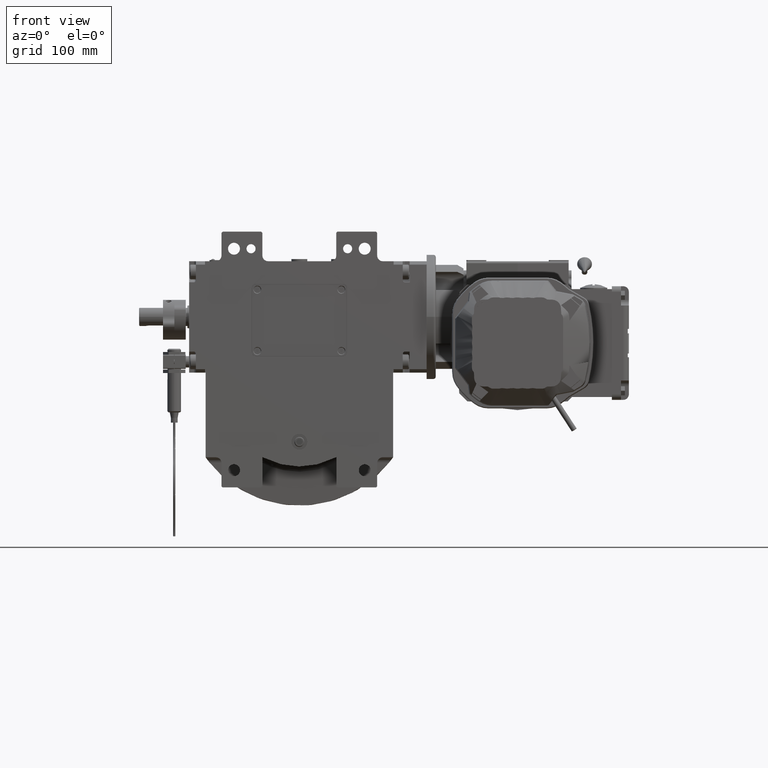
[diagram: clean part render]
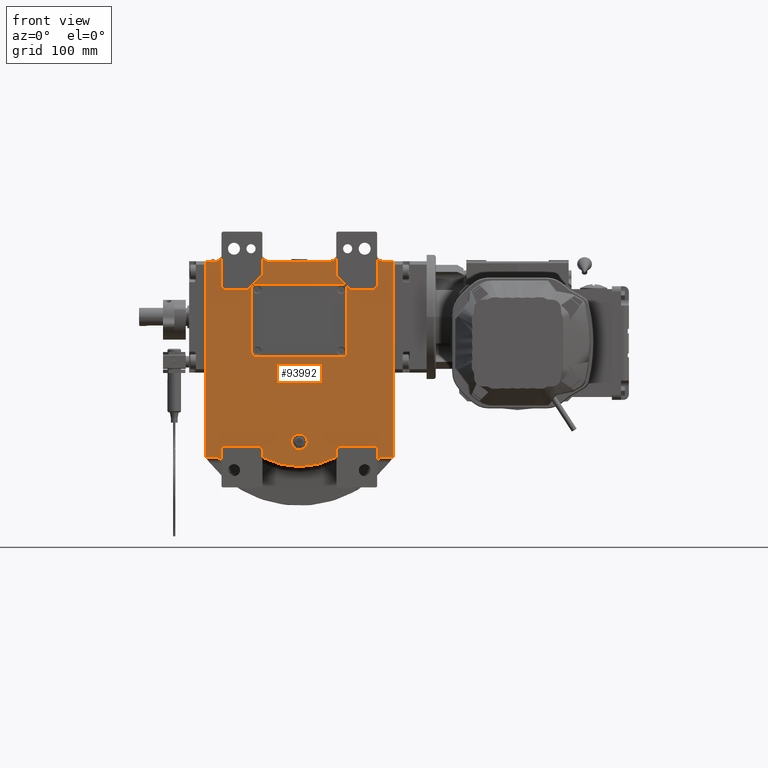
[diagram: same view with one face highlighted and labeled with its STEP entity id]
A machine part, front view. The second image highlights one B-rep face of the part: STEP entity #93992.
In plain terms, the highlighted planar face has unit normal (0, 1, 0).
Its self-contained STEP definition (entity closure, byte-faithful):
#346 = EDGE_CURVE ( 'NONE', #91149, #5003, #90783, .T. ) ;
#618 = VERTEX_POINT ( 'NONE', #14732 ) ;
#723 = CARTESIAN_POINT ( 'NONE',  ( 73.50000000000000000, -40.50000000000000000, -63.50000000000000000 ) ) ;
#1105 = VERTEX_POINT ( 'NONE', #8192 ) ;
#1132 = DIRECTION ( 'NONE',  ( 0.000000000000000000, 1.000000000000000000, 0.000000000000000000 ) ) ;
#1783 = LINE ( 'NONE', #26231, #93983 ) ;
#2097 = CARTESIAN_POINT ( 'NONE',  ( -68.50000000000000000, -40.50000000000000000, 119.0000000000000000 ) ) ;
#2404 = CIRCLE ( 'NONE', #95731, 5.000000000000000888 ) ;
#2912 = CARTESIAN_POINT ( 'NONE',  ( -42.00000000000000000, -40.50000000000000000, 90.00000000000000000 ) ) ;
#2948 = ORIENTED_EDGE ( 'NONE', *, *, #59512, .F. ) ;
#2987 = ORIENTED_EDGE ( 'NONE', *, *, #101188, .F. ) ;
#4972 = CARTESIAN_POINT ( 'NONE',  ( 42.00000000000000000, -40.50000000000000000, 90.00000000000000000 ) ) ;
#5003 = VERTEX_POINT ( 'NONE', #14981 ) ;
#5093 = DIRECTION ( 'NONE',  ( -0.4628475282206209185, 0.000000000000000000, 0.8864379084967325406 ) ) ;
#5520 = AXIS2_PLACEMENT_3D ( 'NONE', #24550, #1132, #57969 ) ;
#6030 = LINE ( 'NONE', #31492, #71637 ) ;
#6302 = CIRCLE ( 'NONE', #46935, 67.00000000000004263 ) ;
#6468 = EDGE_CURVE ( 'NONE', #34314, #38842, #14617, .T. ) ;
#6656 = LINE ( 'NONE', #93819, #96114 ) ;
#7006 = PLANE ( 'NONE',  #25293 ) ;
#7363 = CARTESIAN_POINT ( 'NONE',  ( -4.440892098500625176E-16, -40.50000000000000000, -45.00000000000000000 ) ) ;
#7854 = VERTEX_POINT ( 'NONE', #56520 ) ;
#7886 = VECTOR ( 'NONE', #38449, 1000.000000000000000 ) ;
#8192 = CARTESIAN_POINT ( 'NONE',  ( 38.00000000000000000, -40.50000000000000000, 94.00000000000000000 ) ) ;
#8322 = DIRECTION ( 'NONE',  ( -0.4628475282206227504, 0.000000000000000000, -0.8864379084967315414 ) ) ;
#8622 = LINE ( 'NONE', #50535, #97260 ) ;
#8625 = DIRECTION ( 'NONE',  ( 0.7071067811865474617, 0.000000000000000000, -0.7071067811865474617 ) ) ;
#8729 = DIRECTION ( 'NONE',  ( -1.000000000000000000, 0.000000000000000000, 0.000000000000000000 ) ) ;
#9358 = CARTESIAN_POINT ( 'NONE',  ( 67.50000000000000000, -40.50000000000000000, -49.00000000000000000 ) ) ;
#9524 = CARTESIAN_POINT ( 'NONE',  ( -27.49999999999934630, -40.50000000000000000, 114.0000000000000000 ) ) ;
#9699 = CARTESIAN_POINT ( 'NONE',  ( -38.00000000000000000, -40.50000000000000000, 34.00000000000000000 ) ) ;
#10171 = CARTESIAN_POINT ( 'NONE',  ( 42.00000000000000000, -40.50000000000000000, 34.00000000000000000 ) ) ;
#10844 = DIRECTION ( 'NONE',  ( 0.000000000000000000, 0.000000000000000000, -1.000000000000000000 ) ) ;
#11355 = ORIENTED_EDGE ( 'NONE', *, *, #74103, .F. ) ;
#11360 = LINE ( 'NONE', #11884, #93080 ) ;
#11392 = VERTEX_POINT ( 'NONE', #52538 ) ;
#11481 = ORIENTED_EDGE ( 'NONE', *, *, #82936, .F. ) ;
#11884 = CARTESIAN_POINT ( 'NONE',  ( 38.00000000000000000, -40.50000000000000000, 94.00000000000000000 ) ) ;
#12053 = EDGE_CURVE ( 'NONE', #11392, #59565, #49654, .T. ) ;
#12137 = ORIENTED_EDGE ( 'NONE', *, *, #66024, .F. ) ;
#12842 = VERTEX_POINT ( 'NONE', #23700 ) ;
#12865 = AXIS2_PLACEMENT_3D ( 'NONE', #58894, #34463, #91338 ) ;
#12889 = LINE ( 'NONE', #85691, #35448 ) ;
#13179 = CARTESIAN_POINT ( 'NONE',  ( -68.50000000000000000, -40.50000000000000000, 92.00000000000000000 ) ) ;
#13275 = EDGE_CURVE ( 'NONE', #27685, #66578, #15073, .T. ) ;
#13565 = CARTESIAN_POINT ( 'NONE',  ( -35.50000000000000000, -40.50000000000000000, -49.00000000000000000 ) ) ;
#14313 = CARTESIAN_POINT ( 'NONE',  ( 38.00000000000000000, -40.50000000000000000, 34.00000000000000000 ) ) ;
#14481 = ORIENTED_EDGE ( 'NONE', *, *, #13275, .F. ) ;
#14617 = LINE ( 'NONE', #13565, #40079 ) ;
#14732 = CARTESIAN_POINT ( 'NONE',  ( -38.00000000000000000, -40.50000000000000000, 94.00000000000000000 ) ) ;
#14981 = CARTESIAN_POINT ( 'NONE',  ( 82.50000000000000000, -40.50000000000000000, -58.50000000000000000 ) ) ;
#15073 = LINE ( 'NONE', #70850, #88399 ) ;
#15084 = DIRECTION ( 'NONE',  ( 0.000000000000000000, 1.000000000000000000, 0.000000000000000000 ) ) ;
#15178 = CARTESIAN_POINT ( 'NONE',  ( 45.49999999999939604, -40.50000000000000000, 89.00000000000000000 ) ) ;
#15271 = EDGE_CURVE ( 'NONE', #37704, #69978, #86880, .T. ) ;
#15443 = CARTESIAN_POINT ( 'NONE',  ( -32.50000000000000000, -40.50000000000000000, -58.56853585160510534 ) ) ;
#15635 = AXIS2_PLACEMENT_3D ( 'NONE', #9699, #98941, #75014 ) ;
#15708 = DIRECTION ( 'NONE',  ( 1.000000000000000000, 0.000000000000000000, 0.000000000000000000 ) ) ;
#15762 = CIRCLE ( 'NONE', #73433, 7.000000000000000000 ) ;
#15854 = VERTEX_POINT ( 'NONE', #56394 ) ;
#16130 = CARTESIAN_POINT ( 'NONE',  ( -31.01078439078175109, -40.50000000000000000, -59.06781045751629478 ) ) ;
#16460 = AXIS2_PLACEMENT_3D ( 'NONE', #67127, #76688, #10844 ) ;
#16558 = CARTESIAN_POINT ( 'NONE',  ( 0.000000000000000000, -40.50000000000000000, 0.000000000000000000 ) ) ;
#16599 = DIRECTION ( 'NONE',  ( 0.000000000000000000, -1.000000000000000000, 0.000000000000000000 ) ) ;
#16888 = VERTEX_POINT ( 'NONE', #79453 ) ;
#17082 = CARTESIAN_POINT ( 'NONE',  ( -82.50000000000000000, -40.50000000000000000, 114.0000000000000000 ) ) ;
#17472 = DIRECTION ( 'NONE',  ( -1.000000000000000000, 0.000000000000000000, 0.000000000000000000 ) ) ;
#17951 = VERTEX_POINT ( 'NONE', #74194 ) ;
#18252 = ORIENTED_EDGE ( 'NONE', *, *, #100323, .T. ) ;
#19191 = VECTOR ( 'NONE', #62169, 1000.000000000000114 ) ;
#19694 = AXIS2_PLACEMENT_3D ( 'NONE', #51007, #99384, #74404 ) ;
#20125 = DIRECTION ( 'NONE',  ( 0.7071067811865474617, 0.000000000000000000, 0.7071067811865474617 ) ) ;
#20642 = VERTEX_POINT ( 'NONE', #9358 ) ;
#20761 = LINE ( 'NONE', #53123, #90210 ) ;
#20930 = ORIENTED_EDGE ( 'NONE', *, *, #72659, .T. ) ;
#22005 = LINE ( 'NONE', #54380, #7886 ) ;
#22045 = DIRECTION ( 'NONE',  ( 0.000000000000000000, 0.000000000000000000, 1.000000000000000000 ) ) ;
#22414 = ORIENTED_EDGE ( 'NONE', *, *, #65642, .T. ) ;
#22773 = VECTOR ( 'NONE', #32921, 1000.000000000000000 ) ;
#22788 = CARTESIAN_POINT ( 'NONE',  ( -65.50000000000000000, -40.50000000000000000, 89.00000000000000000 ) ) ;
#22904 = VECTOR ( 'NONE', #92546, 1000.000000000000000 ) ;
#22927 = CARTESIAN_POINT ( 'NONE',  ( 32.49999999999934630, -40.50000000000000000, 102.0000000000000000 ) ) ;
#23011 = CARTESIAN_POINT ( 'NONE',  ( 32.49999999999934630, -40.50000000000000000, 119.0000000000000000 ) ) ;
#23053 = CARTESIAN_POINT ( 'NONE',  ( 27.49999999999934630, -40.50000000000000000, 119.0000000000000000 ) ) ;
#23305 = LINE ( 'NONE', #22788, #85305 ) ;
#23333 = EDGE_CURVE ( 'NONE', #618, #78048, #30725, .T. ) ;
#23433 = DIRECTION ( 'NONE',  ( 0.000000000000000000, -1.000000000000000000, 0.000000000000000000 ) ) ;
#23700 = CARTESIAN_POINT ( 'NONE',  ( 45.49999999999939604, -40.50000000000000000, 89.00000000000000000 ) ) ;
#24048 = DIRECTION ( 'NONE',  ( 3.469446951953611033E-15, 0.000000000000000000, 1.000000000000000000 ) ) ;
#24528 = FACE_OUTER_BOUND ( 'NONE', #83399, .T. ) ;
#24550 = CARTESIAN_POINT ( 'NONE',  ( -73.50000000000000000, -40.50000000000000000, 119.0000000000000000 ) ) ;
#24825 = ORIENTED_EDGE ( 'NONE', *, *, #86739, .F. ) ;
#24955 = AXIS2_PLACEMENT_3D ( 'NONE', #723, #66049, #8729 ) ;
#25240 = DIRECTION ( 'NONE',  ( -0.7071067811865474617, 0.000000000000000000, -0.7071067811865474617 ) ) ;
#25293 = AXIS2_PLACEMENT_3D ( 'NONE', #16558, #40972, #73364 ) ;
#25858 = VERTEX_POINT ( 'NONE', #39622 ) ;
#25908 = CARTESIAN_POINT ( 'NONE',  ( -32.49999999999934630, -40.50000000000000000, 102.0000000000000000 ) ) ;
#26231 = CARTESIAN_POINT ( 'NONE',  ( -38.00000000000000000, -40.50000000000000000, 30.00000000000000000 ) ) ;
#26642 = VERTEX_POINT ( 'NONE', #61068 ) ;
#27685 = VERTEX_POINT ( 'NONE', #41686 ) ;
#28019 = EDGE_CURVE ( 'NONE', #56228, #70097, #72907, .T. ) ;
#28150 = VERTEX_POINT ( 'NONE', #69016 ) ;
#28450 = CARTESIAN_POINT ( 'NONE',  ( -82.50000000000000000, -40.50000000000000000, -58.50000000000000000 ) ) ;
#28872 = CARTESIAN_POINT ( 'NONE',  ( 65.50000000000000000, -40.50000000000000000, 89.00000000000000000 ) ) ;
#29043 = VERTEX_POINT ( 'NONE', #35301 ) ;
#29135 = DIRECTION ( 'NONE',  ( 0.000000000000000000, 1.000000000000000000, 0.000000000000000000 ) ) ;
#29793 = VERTEX_POINT ( 'NONE', #22927 ) ;
#29968 = DIRECTION ( 'NONE',  ( 1.000000000000000000, 0.000000000000000000, 0.000000000000000000 ) ) ;
#30516 = EDGE_CURVE ( 'NONE', #28150, #104757, #36552, .T. ) ;
#30564 = VECTOR ( 'NONE', #33388, 1000.000000000000000 ) ;
#30725 = CIRCLE ( 'NONE', #95204, 4.000000000000003553 ) ;
#30880 = CIRCLE ( 'NONE', #15635, 3.999999999999996447 ) ;
#30986 = DIRECTION ( 'NONE',  ( 0.000000000000000000, -1.000000000000000000, 0.000000000000000000 ) ) ;
#31021 = VECTOR ( 'NONE', #37883, 1000.000000000000000 ) ;
#31492 = CARTESIAN_POINT ( 'NONE',  ( 73.50000000000000000, -40.50000000000000000, 114.0000000000000000 ) ) ;
#31870 = LINE ( 'NONE', #64265, #22773 ) ;
#31950 = CARTESIAN_POINT ( 'NONE',  ( -45.49999999999939604, -40.50000000000000000, 89.00000000000000000 ) ) ;
#32005 = DIRECTION ( 'NONE',  ( 0.000000000000000000, 0.000000000000000000, -1.000000000000000000 ) ) ;
#32643 = VECTOR ( 'NONE', #32005, 1000.000000000000000 ) ;
#32921 = DIRECTION ( 'NONE',  ( 0.7071067811865480168, 0.000000000000000000, 0.7071067811865470176 ) ) ;
#33071 = DIRECTION ( 'NONE',  ( -1.000000000000000000, 0.000000000000000000, 0.000000000000000000 ) ) ;
#33157 = VERTEX_POINT ( 'NONE', #13179 ) ;
#33280 = ORIENTED_EDGE ( 'NONE', *, *, #58257, .F. ) ;
#33313 = CARTESIAN_POINT ( 'NONE',  ( 32.50000000000000000, -40.50000000000000000, -52.00000000000000000 ) ) ;
#33388 = DIRECTION ( 'NONE',  ( 0.000000000000000000, 0.000000000000000000, 1.000000000000000000 ) ) ;
#33463 = DIRECTION ( 'NONE',  ( 1.000000000000000000, 0.000000000000000000, 3.469446951953617344E-15 ) ) ;
#33787 = ORIENTED_EDGE ( 'NONE', *, *, #45079, .F. ) ;
#34053 = EDGE_CURVE ( 'NONE', #1105, #618, #11360, .T. ) ;
#34071 = CARTESIAN_POINT ( 'NONE',  ( -35.50000000000000000, -40.50000000000000000, -49.00000000000000000 ) ) ;
#34155 = CIRCLE ( 'NONE', #88505, 5.000000000000004441 ) ;
#34314 = VERTEX_POINT ( 'NONE', #34071 ) ;
#34392 = CARTESIAN_POINT ( 'NONE',  ( 67.50000000000000000, -40.50000000000000000, -49.00000000000000000 ) ) ;
#34463 = DIRECTION ( 'NONE',  ( 0.000000000000000000, 1.000000000000000000, 0.000000000000000000 ) ) ;
#34950 = CARTESIAN_POINT ( 'NONE',  ( -35.50000000000000000, -40.50000000000000000, -49.00000000000000000 ) ) ;
#35301 = CARTESIAN_POINT ( 'NONE',  ( -68.50000000000000000, -40.50000000000000000, -63.50000000000000000 ) ) ;
#35404 = DIRECTION ( 'NONE',  ( 0.000000000000000000, 1.000000000000000000, 0.000000000000000000 ) ) ;
#35448 = VECTOR ( 'NONE', #54286, 1000.000000000000114 ) ;
#36016 = VERTEX_POINT ( 'NONE', #96405 ) ;
#36299 = DIRECTION ( 'NONE',  ( -1.000000000000000000, 0.000000000000000000, 0.000000000000000000 ) ) ;
#36535 = EDGE_CURVE ( 'NONE', #75880, #26642, #46112, .T. ) ;
#36552 = CIRCLE ( 'NONE', #19694, 5.000000000000000000 ) ;
#36831 = ORIENTED_EDGE ( 'NONE', *, *, #93142, .F. ) ;
#36964 = VECTOR ( 'NONE', #17472, 1000.000000000000000 ) ;
#37704 = VERTEX_POINT ( 'NONE', #10171 ) ;
#37729 = LINE ( 'NONE', #54188, #19191 ) ;
#37883 = DIRECTION ( 'NONE',  ( 0.000000000000000000, 0.000000000000000000, -1.000000000000000000 ) ) ;
#38423 = CARTESIAN_POINT ( 'NONE',  ( -73.50000000000000000, -40.50000000000000000, 114.0000000000000000 ) ) ;
#38449 = DIRECTION ( 'NONE',  ( -1.000000000000000000, 0.000000000000000000, 0.000000000000000000 ) ) ;
#38842 = VERTEX_POINT ( 'NONE', #96731 ) ;
#39033 = DIRECTION ( 'NONE',  ( 0.7071067811865474617, 0.000000000000000000, -0.7071067811865474617 ) ) ;
#39537 = CARTESIAN_POINT ( 'NONE',  ( 42.00000000000000000, -40.50000000000000000, 34.00000000000000000 ) ) ;
#39622 = CARTESIAN_POINT ( 'NONE',  ( 27.49999999999934630, -40.50000000000000000, 114.0000000000000000 ) ) ;
#39744 = CIRCLE ( 'NONE', #73616, 4.000000000000000000 ) ;
#40079 = VECTOR ( 'NONE', #39033, 1000.000000000000114 ) ;
#40334 = EDGE_CURVE ( 'NONE', #69978, #1105, #92074, .T. ) ;
#40651 = EDGE_CURVE ( 'NONE', #81500, #16888, #15762, .T. ) ;
#40689 = CARTESIAN_POINT ( 'NONE',  ( -73.50000000000000000, -40.50000000000000000, -58.50000000000000000 ) ) ;
#40925 = CARTESIAN_POINT ( 'NONE',  ( 38.00000000000000000, -40.50000000000000000, 90.00000000000000000 ) ) ;
#40972 = DIRECTION ( 'NONE',  ( -0.000000000000000000, 1.000000000000000000, 0.000000000000000000 ) ) ;
#40977 = CARTESIAN_POINT ( 'NONE',  ( 32.50000000000000000, -40.50000000000000000, -58.56853585160510534 ) ) ;
#41362 = DIRECTION ( 'NONE',  ( -1.647635329298784785E-16, 0.000000000000000000, -1.000000000000000000 ) ) ;
#41686 = CARTESIAN_POINT ( 'NONE',  ( 68.50000000000000000, -40.50000000000000000, -63.50000000000000000 ) ) ;
#41725 = ORIENTED_EDGE ( 'NONE', *, *, #48480, .T. ) ;
#42929 = LINE ( 'NONE', #34950, #36964 ) ;
#43008 = ORIENTED_EDGE ( 'NONE', *, *, #88728, .F. ) ;
#43540 = LINE ( 'NONE', #2097, #32643 ) ;
#43569 = ORIENTED_EDGE ( 'NONE', *, *, #73660, .F. ) ;
#43689 = ORIENTED_EDGE ( 'NONE', *, *, #49119, .T. ) ;
#45079 = EDGE_CURVE ( 'NONE', #11392, #104961, #49853, .T. ) ;
#46074 = ORIENTED_EDGE ( 'NONE', *, *, #346, .F. ) ;
#46112 = LINE ( 'NONE', #85969, #54335 ) ;
#46935 = AXIS2_PLACEMENT_3D ( 'NONE', #67225, #99658, #8322 ) ;
#47460 = DIRECTION ( 'NONE',  ( 0.000000000000000000, 0.000000000000000000, 1.000000000000000000 ) ) ;
#48480 = EDGE_CURVE ( 'NONE', #87971, #96986, #69340, .T. ) ;
#48758 = DIRECTION ( 'NONE',  ( 1.000000000000000000, 0.000000000000000000, 0.000000000000000000 ) ) ;
#48859 = ORIENTED_EDGE ( 'NONE', *, *, #23333, .F. ) ;
#49119 = EDGE_CURVE ( 'NONE', #76762, #70097, #73372, .T. ) ;
#49551 = EDGE_CURVE ( 'NONE', #91727, #7854, #37729, .T. ) ;
#49654 = LINE ( 'NONE', #92054, #71549 ) ;
#49853 = LINE ( 'NONE', #95228, #30564 ) ;
#50187 = CARTESIAN_POINT ( 'NONE',  ( -68.50000000000000000, -40.50000000000000000, 119.0000000000000000 ) ) ;
#50331 = ORIENTED_EDGE ( 'NONE', *, *, #100788, .T. ) ;
#50492 = CARTESIAN_POINT ( 'NONE',  ( 82.50000000000000000, -40.50000000000000000, 114.0000000000000000 ) ) ;
#50535 = CARTESIAN_POINT ( 'NONE',  ( -32.49999999999934630, -40.50000000000000000, 102.0000000000000000 ) ) ;
#51007 = CARTESIAN_POINT ( 'NONE',  ( -33.32502203188484913, -40.50000000000000000, -63.50000000000000000 ) ) ;
#51079 = ORIENTED_EDGE ( 'NONE', *, *, #28019, .F. ) ;
#51171 = ORIENTED_EDGE ( 'NONE', *, *, #101301, .F. ) ;
#51447 = EDGE_CURVE ( 'NONE', #83344, #25858, #76571, .T. ) ;
#51544 = VECTOR ( 'NONE', #65468, 1000.000000000000000 ) ;
#52538 = CARTESIAN_POINT ( 'NONE',  ( 68.50000000000000000, -40.50000000000000000, 92.00000000000000000 ) ) ;
#52718 = EDGE_CURVE ( 'NONE', #28150, #38842, #63770, .T. ) ;
#53027 = ORIENTED_EDGE ( 'NONE', *, *, #6468, .T. ) ;
#53123 = CARTESIAN_POINT ( 'NONE',  ( 32.50000000000000000, -40.50000000000000000, -52.00000000000000000 ) ) ;
#53192 = ORIENTED_EDGE ( 'NONE', *, *, #36535, .T. ) ;
#53558 = DIRECTION ( 'NONE',  ( 0.000000000000000000, 0.000000000000000000, -1.000000000000000000 ) ) ;
#53561 = DIRECTION ( 'NONE',  ( 0.000000000000000000, 0.000000000000000000, 1.000000000000000000 ) ) ;
#53641 = DIRECTION ( 'NONE',  ( 0.000000000000000000, 0.000000000000000000, -1.000000000000000000 ) ) ;
#54077 = EDGE_CURVE ( 'NONE', #96986, #29043, #56907, .T. ) ;
#54188 = CARTESIAN_POINT ( 'NONE',  ( -68.50000000000000000, -40.50000000000000000, -50.00000000000000000 ) ) ;
#54286 = DIRECTION ( 'NONE',  ( 0.7071067811865474617, 0.000000000000000000, -0.7071067811865474617 ) ) ;
#54335 = VECTOR ( 'NONE', #20125, 1000.000000000000114 ) ;
#54368 = LINE ( 'NONE', #79370, #93196 ) ;
#54380 = CARTESIAN_POINT ( 'NONE',  ( 82.50000000000000000, -40.50000000000000000, -58.50000000000000000 ) ) ;
#54601 = CIRCLE ( 'NONE', #100436, 7.000000000000000000 ) ;
#55163 = DIRECTION ( 'NONE',  ( -0.7071067811865474617, 0.000000000000000000, 0.7071067811865474617 ) ) ;
#55169 = CARTESIAN_POINT ( 'NONE',  ( -42.00000000000000000, -40.50000000000000000, 34.00000000000000000 ) ) ;
#55715 = DIRECTION ( 'NONE',  ( 0.000000000000000000, -1.000000000000000000, 0.000000000000000000 ) ) ;
#56228 = VERTEX_POINT ( 'NONE', #17082 ) ;
#56394 = CARTESIAN_POINT ( 'NONE',  ( -38.00000000000000000, -40.50000000000000000, 30.00000000000000000 ) ) ;
#56427 = CARTESIAN_POINT ( 'NONE',  ( -38.00000000000000000, -40.50000000000000000, 90.00000000000000000 ) ) ;
#56434 = EDGE_CURVE ( 'NONE', #75880, #78953, #20761, .T. ) ;
#56520 = CARTESIAN_POINT ( 'NONE',  ( -67.50000000000000000, -40.50000000000000000, -49.00000000000000000 ) ) ;
#56907 = CIRCLE ( 'NONE', #12865, 4.999999999999997335 ) ;
#56976 = CARTESIAN_POINT ( 'NONE',  ( -82.50000000000000000, -40.50000000000000000, 114.0000000000000000 ) ) ;
#57966 = CIRCLE ( 'NONE', #64808, 5.000000000000150990 ) ;
#57969 = DIRECTION ( 'NONE',  ( 1.000000000000000000, 0.000000000000000000, 0.000000000000000000 ) ) ;
#58257 = EDGE_CURVE ( 'NONE', #88759, #69463, #8622, .T. ) ;
#58379 = VECTOR ( 'NONE', #15708, 1000.000000000000000 ) ;
#58411 = ORIENTED_EDGE ( 'NONE', *, *, #40334, .F. ) ;
#58894 = CARTESIAN_POINT ( 'NONE',  ( -73.50000000000000000, -40.50000000000000000, -63.50000000000000000 ) ) ;
#59512 = EDGE_CURVE ( 'NONE', #69770, #29793, #63363, .T. ) ;
#59565 = VERTEX_POINT ( 'NONE', #28872 ) ;
#60813 = DIRECTION ( 'NONE',  ( 0.000000000000000000, 0.000000000000000000, -1.000000000000000000 ) ) ;
#61068 = CARTESIAN_POINT ( 'NONE',  ( 35.50000000000000000, -40.50000000000000000, -49.00000000000000000 ) ) ;
#62169 = DIRECTION ( 'NONE',  ( 0.7071067811865474617, 0.000000000000000000, 0.7071067811865474617 ) ) ;
#62217 = CARTESIAN_POINT ( 'NONE',  ( -82.50000000000000000, -40.50000000000000000, -58.50000000000000000 ) ) ;
#62258 = ORIENTED_EDGE ( 'NONE', *, *, #56434, .F. ) ;
#63098 = VECTOR ( 'NONE', #60813, 1000.000000000000000 ) ;
#63137 = ORIENTED_EDGE ( 'NONE', *, *, #49551, .T. ) ;
#63363 = LINE ( 'NONE', #23011, #31021 ) ;
#63770 = LINE ( 'NONE', #15443, #83865 ) ;
#63885 = DIRECTION ( 'NONE',  ( 1.000000000000000000, 0.000000000000000000, 0.000000000000000000 ) ) ;
#64238 = EDGE_CURVE ( 'NONE', #104757, #94118, #6302, .T. ) ;
#64265 = CARTESIAN_POINT ( 'NONE',  ( -45.49999999999939604, -40.50000000000000000, 89.00000000000000000 ) ) ;
#64608 = EDGE_CURVE ( 'NONE', #27685, #82191, #70732, .T. ) ;
#64706 = DIRECTION ( 'NONE',  ( 0.000000000000000000, -1.000000000000000000, 0.000000000000000000 ) ) ;
#64808 = AXIS2_PLACEMENT_3D ( 'NONE', #77895, #35404, #5093 ) ;
#65106 = CARTESIAN_POINT ( 'NONE',  ( -68.50000000000000000, -40.50000000000000000, -50.00000000000000000 ) ) ;
#65450 = EDGE_CURVE ( 'NONE', #36016, #79033, #6656, .T. ) ;
#65468 = DIRECTION ( 'NONE',  ( 1.000000000000000000, 0.000000000000000000, 0.000000000000000000 ) ) ;
#65642 = EDGE_CURVE ( 'NONE', #83344, #69463, #82570, .T. ) ;
#66024 = EDGE_CURVE ( 'NONE', #29793, #12842, #81399, .T. ) ;
#66049 = DIRECTION ( 'NONE',  ( 0.000000000000000000, 1.000000000000000000, 0.000000000000000000 ) ) ;
#66578 = VERTEX_POINT ( 'NONE', #83371 ) ;
#66793 = DIRECTION ( 'NONE',  ( -1.000000000000000000, 0.000000000000000000, 0.000000000000000000 ) ) ;
#67120 = DIRECTION ( 'NONE',  ( 1.000000000000000000, 0.000000000000000000, 0.000000000000000000 ) ) ;
#67127 = CARTESIAN_POINT ( 'NONE',  ( -27.49999999999934630, -40.50000000000000000, 119.0000000000000000 ) ) ;
#67225 = CARTESIAN_POINT ( 'NONE',  ( -1.421085471520200056E-14, -40.50000000000000000, 0.3235294117646605461 ) ) ;
#68071 = CARTESIAN_POINT ( 'NONE',  ( -27.49999999999934630, -40.50000000000000000, 114.0000000000000000 ) ) ;
#68472 = LINE ( 'NONE', #100897, #70145 ) ;
#69016 = CARTESIAN_POINT ( 'NONE',  ( -32.50000000000000000, -40.50000000000000000, -58.56853585160510534 ) ) ;
#69340 = LINE ( 'NONE', #28450, #71650 ) ;
#69463 = VERTEX_POINT ( 'NONE', #90717 ) ;
#69512 = VECTOR ( 'NONE', #41362, 1000.000000000000000 ) ;
#69770 = VERTEX_POINT ( 'NONE', #72003 ) ;
#69777 = ORIENTED_EDGE ( 'NONE', *, *, #12053, .T. ) ;
#69887 = DIRECTION ( 'NONE',  ( 1.000000000000000000, 0.000000000000000000, 0.000000000000000000 ) ) ;
#69978 = VERTEX_POINT ( 'NONE', #4972 ) ;
#70097 = VERTEX_POINT ( 'NONE', #38423 ) ;
#70145 = VECTOR ( 'NONE', #53561, 1000.000000000000000 ) ;
#70246 = EDGE_CURVE ( 'NONE', #16888, #81500, #54601, .T. ) ;
#70363 = EDGE_CURVE ( 'NONE', #70456, #15854, #30880, .T. ) ;
#70427 = ORIENTED_EDGE ( 'NONE', *, *, #72483, .F. ) ;
#70456 = VERTEX_POINT ( 'NONE', #55169 ) ;
#70732 = CIRCLE ( 'NONE', #24955, 5.000000000000004441 ) ;
#70850 = CARTESIAN_POINT ( 'NONE',  ( 68.50000000000000000, -40.50000000000000000, -63.50000000000000000 ) ) ;
#71549 = VECTOR ( 'NONE', #25240, 1000.000000000000114 ) ;
#71637 = VECTOR ( 'NONE', #63885, 1000.000000000000000 ) ;
#71650 = VECTOR ( 'NONE', #102817, 1000.000000000000000 ) ;
#71868 = CARTESIAN_POINT ( 'NONE',  ( 4.440892098500625176E-16, -40.50000000000000000, -45.00000000000000000 ) ) ;
#71976 = ORIENTED_EDGE ( 'NONE', *, *, #93823, .T. ) ;
#72003 = CARTESIAN_POINT ( 'NONE',  ( 32.49999999999934630, -40.50000000000000000, 119.0000000000000000 ) ) ;
#72347 = CARTESIAN_POINT ( 'NONE',  ( 32.49999999999934630, -40.50000000000000000, 102.0000000000000000 ) ) ;
#72483 = EDGE_CURVE ( 'NONE', #92622, #37704, #39744, .T. ) ;
#72659 = EDGE_CURVE ( 'NONE', #69770, #25858, #2404, .T. ) ;
#72907 = LINE ( 'NONE', #56976, #51544 ) ;
#73364 = DIRECTION ( 'NONE',  ( 1.000000000000000000, 0.000000000000000000, 0.000000000000000000 ) ) ;
#73372 = CIRCLE ( 'NONE', #5520, 5.000000000000004441 ) ;
#73433 = AXIS2_PLACEMENT_3D ( 'NONE', #7363, #64706, #48758 ) ;
#73616 = AXIS2_PLACEMENT_3D ( 'NONE', #14313, #55715, #98569 ) ;
#73660 = EDGE_CURVE ( 'NONE', #15854, #92622, #1783, .T. ) ;
#74103 = EDGE_CURVE ( 'NONE', #79033, #88759, #31870, .T. ) ;
#74194 = CARTESIAN_POINT ( 'NONE',  ( 73.50000000000000000, -40.50000000000000000, 114.0000000000000000 ) ) ;
#74404 = DIRECTION ( 'NONE',  ( 0.1650044063769659508, 0.000000000000000000, 0.9862928296789877924 ) ) ;
#75014 = DIRECTION ( 'NONE',  ( -1.000000000000000000, 0.000000000000000000, 0.000000000000000000 ) ) ;
#75797 = ORIENTED_EDGE ( 'NONE', *, *, #54077, .T. ) ;
#75880 = VERTEX_POINT ( 'NONE', #33313 ) ;
#76571 = LINE ( 'NONE', #68071, #22904 ) ;
#76688 = DIRECTION ( 'NONE',  ( 0.000000000000000000, 1.000000000000000000, 0.000000000000000000 ) ) ;
#76762 = VERTEX_POINT ( 'NONE', #50187 ) ;
#76805 = EDGE_CURVE ( 'NONE', #5003, #82191, #22005, .T. ) ;
#77895 = CARTESIAN_POINT ( 'NONE',  ( 33.32502203188480649, -40.50000000000000000, -63.50000000000000000 ) ) ;
#78048 = VERTEX_POINT ( 'NONE', #2912 ) ;
#78405 = EDGE_LOOP ( 'NONE', ( #92449, #96712 ) ) ;
#78953 = VERTEX_POINT ( 'NONE', #40977 ) ;
#79033 = VERTEX_POINT ( 'NONE', #31950 ) ;
#79188 = ORIENTED_EDGE ( 'NONE', *, *, #70363, .F. ) ;
#79190 = VECTOR ( 'NONE', #8625, 1000.000000000000114 ) ;
#79370 = CARTESIAN_POINT ( 'NONE',  ( -42.00000000000000000, -40.50000000000000000, 90.00000000000000000 ) ) ;
#79453 = CARTESIAN_POINT ( 'NONE',  ( -7.000000000000000000, -40.50000000000000000, -45.00000000000000000 ) ) ;
#80782 = ORIENTED_EDGE ( 'NONE', *, *, #64608, .T. ) ;
#81399 = LINE ( 'NONE', #72347, #79190 ) ;
#81500 = VERTEX_POINT ( 'NONE', #84194 ) ;
#81603 = EDGE_CURVE ( 'NONE', #78048, #70456, #54368, .T. ) ;
#81995 = ORIENTED_EDGE ( 'NONE', *, *, #30516, .T. ) ;
#82191 = VERTEX_POINT ( 'NONE', #103545 ) ;
#82570 = CIRCLE ( 'NONE', #16460, 5.000000000000004441 ) ;
#82936 = EDGE_CURVE ( 'NONE', #91727, #29043, #99087, .T. ) ;
#82970 = DIRECTION ( 'NONE',  ( 0.000000000000000000, 0.000000000000000000, 1.000000000000000000 ) ) ;
#83344 = VERTEX_POINT ( 'NONE', #9524 ) ;
#83371 = CARTESIAN_POINT ( 'NONE',  ( 68.50000000000000000, -40.50000000000000000, -50.00000000000000000 ) ) ;
#83399 = EDGE_LOOP ( 'NONE', ( #80782, #93566, #46074, #2987, #18252, #33787, #69777, #24825, #12137, #2948, #20930, #91994, #22414, #33280, #11355, #95841, #96648, #51171, #43689, #51079, #95423, #41725, #75797, #11481, #63137, #36831, #53027, #85099, #81995, #97882, #50331, #62258, #53192, #43008, #71976, #14481 ) ) ;
#83865 = VECTOR ( 'NONE', #88768, 1000.000000000000000 ) ;
#84102 = VECTOR ( 'NONE', #66793, 1000.000000000000000 ) ;
#84194 = CARTESIAN_POINT ( 'NONE',  ( 7.000000000000000000, -40.50000000000000000, -45.00000000000000000 ) ) ;
#84433 = CARTESIAN_POINT ( 'NONE',  ( 73.50000000000000000, -40.50000000000000000, 119.0000000000000000 ) ) ;
#85099 = ORIENTED_EDGE ( 'NONE', *, *, #52718, .F. ) ;
#85305 = VECTOR ( 'NONE', #55163, 1000.000000000000114 ) ;
#85691 = CARTESIAN_POINT ( 'NONE',  ( 67.50000000000000000, -40.50000000000000000, -49.00000000000000000 ) ) ;
#85832 = ORIENTED_EDGE ( 'NONE', *, *, #34053, .F. ) ;
#85969 = CARTESIAN_POINT ( 'NONE',  ( 32.50000000000000000, -40.50000000000000000, -52.00000000000000000 ) ) ;
#86114 = EDGE_CURVE ( 'NONE', #87971, #56228, #68472, .T. ) ;
#86739 = EDGE_CURVE ( 'NONE', #12842, #59565, #87986, .T. ) ;
#86880 = LINE ( 'NONE', #39537, #97206 ) ;
#86924 = EDGE_LOOP ( 'NONE', ( #43569, #79188, #91902, #48859, #85832, #58411, #101153, #70427 ) ) ;
#87971 = VERTEX_POINT ( 'NONE', #62217 ) ;
#87986 = LINE ( 'NONE', #15178, #58379 ) ;
#88399 = VECTOR ( 'NONE', #47460, 1000.000000000000000 ) ;
#88505 = AXIS2_PLACEMENT_3D ( 'NONE', #84433, #29135, #53558 ) ;
#88728 = EDGE_CURVE ( 'NONE', #20642, #26642, #90749, .T. ) ;
#88759 = VERTEX_POINT ( 'NONE', #25908 ) ;
#88768 = DIRECTION ( 'NONE',  ( 0.000000000000000000, 0.000000000000000000, 1.000000000000000000 ) ) ;
#89351 = FACE_BOUND ( 'NONE', #86924, .T. ) ;
#90210 = VECTOR ( 'NONE', #53641, 1000.000000000000000 ) ;
#90717 = CARTESIAN_POINT ( 'NONE',  ( -32.49999999999934630, -40.50000000000000000, 119.0000000000000000 ) ) ;
#90749 = LINE ( 'NONE', #34392, #84102 ) ;
#90783 = LINE ( 'NONE', #96667, #69512 ) ;
#91010 = CARTESIAN_POINT ( 'NONE',  ( 68.50000000000000000, -40.50000000000000000, 119.0000000000000000 ) ) ;
#91149 = VERTEX_POINT ( 'NONE', #50492 ) ;
#91338 = DIRECTION ( 'NONE',  ( 0.000000000000000000, 0.000000000000000000, 1.000000000000000000 ) ) ;
#91727 = VERTEX_POINT ( 'NONE', #65106 ) ;
#91902 = ORIENTED_EDGE ( 'NONE', *, *, #81603, .F. ) ;
#91994 = ORIENTED_EDGE ( 'NONE', *, *, #51447, .F. ) ;
#92054 = CARTESIAN_POINT ( 'NONE',  ( 68.50000000000000000, -40.50000000000000000, 92.00000000000000000 ) ) ;
#92074 = CIRCLE ( 'NONE', #103962, 3.999999999999996447 ) ;
#92449 = ORIENTED_EDGE ( 'NONE', *, *, #40651, .F. ) ;
#92546 = DIRECTION ( 'NONE',  ( 1.000000000000000000, 0.000000000000000000, 0.000000000000000000 ) ) ;
#92622 = VERTEX_POINT ( 'NONE', #104724 ) ;
#93080 = VECTOR ( 'NONE', #36299, 1000.000000000000000 ) ;
#93142 = EDGE_CURVE ( 'NONE', #34314, #7854, #42929, .T. ) ;
#93196 = VECTOR ( 'NONE', #102744, 1000.000000000000000 ) ;
#93566 = ORIENTED_EDGE ( 'NONE', *, *, #76805, .F. ) ;
#93819 = CARTESIAN_POINT ( 'NONE',  ( -65.50000000000000000, -40.50000000000000000, 89.00000000000000000 ) ) ;
#93823 = EDGE_CURVE ( 'NONE', #20642, #66578, #12889, .T. ) ;
#93983 = VECTOR ( 'NONE', #67120, 1000.000000000000000 ) ;
#93992 = ADVANCED_FACE ( 'NONE', ( #97314, #24528, #89351 ), #7006, .F. ) ;
#94118 = VERTEX_POINT ( 'NONE', #99399 ) ;
#95204 = AXIS2_PLACEMENT_3D ( 'NONE', #56427, #16599, #24048 ) ;
#95228 = CARTESIAN_POINT ( 'NONE',  ( 68.50000000000000000, -40.50000000000000000, 92.00000000000000000 ) ) ;
#95423 = ORIENTED_EDGE ( 'NONE', *, *, #86114, .F. ) ;
#95731 = AXIS2_PLACEMENT_3D ( 'NONE', #23053, #15084, #29968 ) ;
#95841 = ORIENTED_EDGE ( 'NONE', *, *, #65450, .F. ) ;
#96114 = VECTOR ( 'NONE', #69887, 1000.000000000000000 ) ;
#96405 = CARTESIAN_POINT ( 'NONE',  ( -65.50000000000000000, -40.50000000000000000, 89.00000000000000000 ) ) ;
#96648 = ORIENTED_EDGE ( 'NONE', *, *, #101745, .T. ) ;
#96667 = CARTESIAN_POINT ( 'NONE',  ( 82.50000000000000000, -40.50000000000000000, 114.0000000000000000 ) ) ;
#96712 = ORIENTED_EDGE ( 'NONE', *, *, #70246, .F. ) ;
#96731 = CARTESIAN_POINT ( 'NONE',  ( -32.50000000000000000, -40.50000000000000000, -52.00000000000000000 ) ) ;
#96986 = VERTEX_POINT ( 'NONE', #40689 ) ;
#97206 = VECTOR ( 'NONE', #22045, 1000.000000000000000 ) ;
#97260 = VECTOR ( 'NONE', #82970, 1000.000000000000000 ) ;
#97314 = FACE_BOUND ( 'NONE', #78405, .T. ) ;
#97882 = ORIENTED_EDGE ( 'NONE', *, *, #64238, .T. ) ;
#98569 = DIRECTION ( 'NONE',  ( -1.734723475976807094E-15, 0.000000000000000000, -1.000000000000000000 ) ) ;
#98941 = DIRECTION ( 'NONE',  ( 0.000000000000000000, -1.000000000000000000, 0.000000000000000000 ) ) ;
#99087 = LINE ( 'NONE', #101193, #63098 ) ;
#99384 = DIRECTION ( 'NONE',  ( 0.000000000000000000, 1.000000000000000000, 0.000000000000000000 ) ) ;
#99399 = CARTESIAN_POINT ( 'NONE',  ( 31.01078439078154858, -40.50000000000000000, -59.06781045751640136 ) ) ;
#99658 = DIRECTION ( 'NONE',  ( 0.000000000000000000, -1.000000000000000000, 0.000000000000000000 ) ) ;
#100323 = EDGE_CURVE ( 'NONE', #17951, #104961, #34155, .T. ) ;
#100436 = AXIS2_PLACEMENT_3D ( 'NONE', #71868, #30986, #33071 ) ;
#100788 = EDGE_CURVE ( 'NONE', #94118, #78953, #57966, .T. ) ;
#100897 = CARTESIAN_POINT ( 'NONE',  ( -82.50000000000000000, -40.50000000000000000, -58.50000000000000000 ) ) ;
#101153 = ORIENTED_EDGE ( 'NONE', *, *, #15271, .F. ) ;
#101188 = EDGE_CURVE ( 'NONE', #17951, #91149, #6030, .T. ) ;
#101193 = CARTESIAN_POINT ( 'NONE',  ( -68.50000000000000000, -40.50000000000000000, -50.00000000000000000 ) ) ;
#101301 = EDGE_CURVE ( 'NONE', #76762, #33157, #43540, .T. ) ;
#101745 = EDGE_CURVE ( 'NONE', #36016, #33157, #23305, .T. ) ;
#102744 = DIRECTION ( 'NONE',  ( 0.000000000000000000, 0.000000000000000000, -1.000000000000000000 ) ) ;
#102817 = DIRECTION ( 'NONE',  ( 1.000000000000000000, 0.000000000000000000, 0.000000000000000000 ) ) ;
#103545 = CARTESIAN_POINT ( 'NONE',  ( 73.50000000000000000, -40.50000000000000000, -58.50000000000000000 ) ) ;
#103962 = AXIS2_PLACEMENT_3D ( 'NONE', #40925, #23433, #33463 ) ;
#104724 = CARTESIAN_POINT ( 'NONE',  ( 38.00000000000000000, -40.50000000000000000, 30.00000000000000000 ) ) ;
#104757 = VERTEX_POINT ( 'NONE', #16130 ) ;
#104961 = VERTEX_POINT ( 'NONE', #91010 ) ;